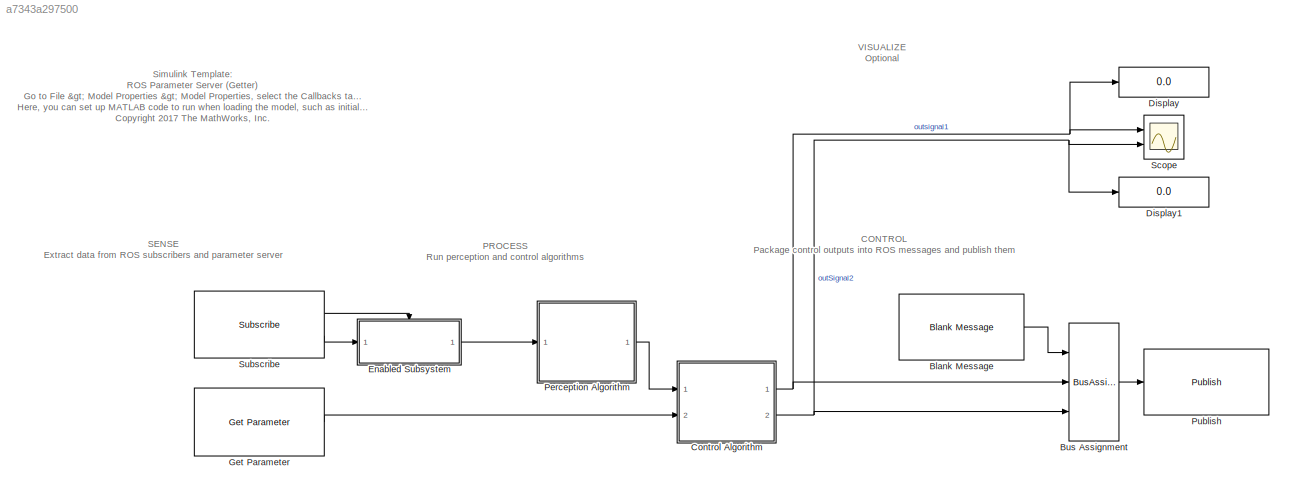
MODEL slx_a7343a297500
KIND model
CONFIG AbsTol = auto
CONFIG EnableMultiTasking = off
CONFIG FixedStep = auto
CONFIG MaxStep = auto
CONFIG MinStep = auto
CONFIG PreLoadFcn = % ROS setup\nrosshutdown;\nipAddr = '';\nrosinit(ipAddr)\n\n% Sample times\nsampleTime = 0.2;\n\n% Control parameters\nctrlParam = 2;\nrosparam('set','/my_param',3.5);
CONFIG RelTol = 1e-3
CONFIG SampleTimeConstraint = Unconstrained
CONFIG Solver = VariableStepAuto
CONFIG SolverName = VariableStepAuto
CONFIG StartTime = 0.0
CONFIG StopTime = inf
BLOCK [Reference] Blank Message  REF=robotlib/Blank Message
  Ports = [0, 1]
  SourceBlock = robotlib/Blank Message
  SourceLibraryInfo = This block requires Robotics System Toolbox
  SourceProductBaseCode = RO
  SourceProductName = Robotics System Toolbox
  SourceType = ROS Blank Message
BLOCK [BusAssignment] Bus Assignment
  AssignedSignals = X,Y
  Ports = [3, 1]
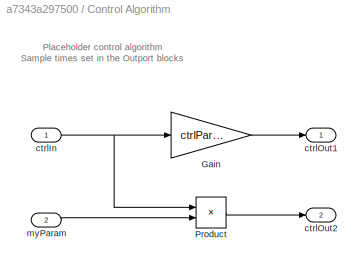
BLOCK [SubSystem] Control Algorithm
  Ports = [2, 2]
  RequestExecContextInheritance = off
  Variant = off
BLOCK [Gain] Control Algorithm/Gain
  Gain = ctrlParam
  OutDataTypeStr = Inherit: Inherit via internal rule
  ParamDataTypeStr = Inherit: Inherit via internal rule
  SaturateOnIntegerOverflow = off
BLOCK [Product] Control Algorithm/Product
  InputSameDT = off
  OutDataTypeStr = Inherit: Inherit via internal rule
  Ports = [2, 1]
  RndMeth = Floor
  SaturateOnIntegerOverflow = off
BLOCK [Inport] Control Algorithm/ctrlIn
  IconDisplay = Port number
BLOCK [Outport] Control Algorithm/ctrlOut1
  AttributesFormatString = Sample time: %<SampleTime>
  IconDisplay = Port number
  SampleTime = sampleTime
  SignalType = real
BLOCK [Outport] Control Algorithm/ctrlOut2
  AttributesFormatString = Sample time: %<SampleTime>
  IconDisplay = Port number
  Port = 2
  SampleTime = sampleTime
BLOCK [Inport] Control Algorithm/myParam
  IconDisplay = Port number
  Port = 2
BLOCK [Display] Display
  Decimation = 1
  Ports = [1]
BLOCK [Display] Display1
  Decimation = 1
  Ports = [1]
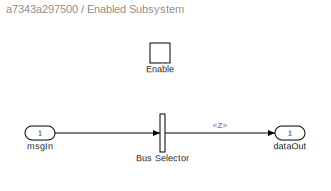
BLOCK [SubSystem] Enabled Subsystem
  Ports = [1, 1, 1]
  RequestExecContextInheritance = off
  TreatAsAtomicUnit = on
  Variant = off
BLOCK [BusSelector] Enabled Subsystem/Bus Selector
  OutputAsBus = off
  OutputSignals = Z
  Ports = [1, 1]
BLOCK [EnablePort] Enabled Subsystem/Enable
  Ports = []
BLOCK [Outport] Enabled Subsystem/dataOut
  IconDisplay = Port number
BLOCK [Inport] Enabled Subsystem/msgIn
  IconDisplay = Port number
BLOCK [Reference] Get Parameter  REF=robotlib/Get Parameter
  Ports = [0, 1]
  SourceBlock = robotlib/Get Parameter
  SourceLibraryInfo = This block requires Robotics System Toolbox
  SourceProductBaseCode = RO
  SourceProductName = Robotics System Toolbox
  SourceType = ROS Get Parameter
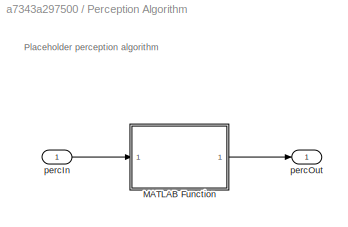
BLOCK [SubSystem] Perception Algorithm
  Ports = [1, 1]
  RequestExecContextInheritance = off
  Variant = off
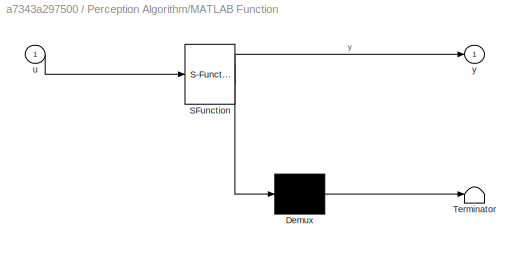
BLOCK [SubSystem] Perception Algorithm/MATLAB Function
  ErrorFcn = Stateflow.Translate.translate
  PermitHierarchicalResolution = ExplicitOnly
  Ports = [1, 1]
  RequestExecContextInheritance = off
  SFBlockType = MATLAB Function
  TreatAsAtomicUnit = on
  Variant = off
BLOCK [Demux] Perception Algorithm/MATLAB Function/ Demux 
  Outputs = 1
  Ports = [1, 1]
BLOCK [S-Function] Perception Algorithm/MATLAB Function/ SFunction 
  EnableBusSupport = on
  FunctionName = sf_sfun
  PortCounts = [1 2]
  Ports = [1, 2]
  SFcnIsStateOwnerBlock = off
  SFunctionDeploymentMode = off
  Tag = Stateflow S-Function paramServerGetterTemplate 2
BLOCK [Terminator] Perception Algorithm/MATLAB Function/ Terminator 
BLOCK [Inport] Perception Algorithm/MATLAB Function/u
  IconDisplay = Port number
BLOCK [Outport] Perception Algorithm/MATLAB Function/y
  IconDisplay = Port number
BLOCK [Inport] Perception Algorithm/percIn
  IconDisplay = Port number
BLOCK [Outport] Perception Algorithm/percOut
  IconDisplay = Port number
BLOCK [Reference] Publish  REF=robotlib/Publish
  Ports = [1]
  SourceBlock = robotlib/Publish
  SourceLibraryInfo = This block requires Robotics System Toolbox
  SourceProductBaseCode = RO
  SourceProductName = Robotics System Toolbox
  SourceType = ROS Publish
BLOCK [Scope] Scope
  NumInputPorts = 2
  Ports = [2]
  ScopeSpecificationString = Simulink.scopes.TimeScopeBlockCfg('CurrentConfiguration', extmgr.ConfigurationSet(extmgr.Configuration('Core','General UI',true),extmgr.Configuration('Core','Source UI',true),extmgr.Configuration('Sources','WiredSimulink',true),extmgr.Configuration('Visuals','Time Domain',true,'SerializedDisplays',{struct('MinYLimReal','-1.00000','MaxYLimReal','1.00000','YLabelReal','','MinYLimMag','0.00000','MaxY...<+1320ch>
BLOCK [Reference] Subscribe  REF=robotlib/Subscribe
  Ports = [0, 2]
  SourceBlock = robotlib/Subscribe
  SourceLibraryInfo = This block requires Robotics System Toolbox
  SourceProductBaseCode = RO
  SourceProductName = Robotics System Toolbox
  SourceType = ROS Subscribe
ANNOTATION (root): Simulink Template: ROS Parameter Server (Getter) Go to File > Model Properties > Model Properties , select the Callbacks tab, and go to PreLoadFcn . Here, you can set up MATLAB code to run when loading the model, such as initializing ROS and loading parameters. <copyright redacted>
ANNOTATION (root): CONTROL Package control outputs into ROS messages and publish them
ANNOTATION (root): PROCESS Run perception and control algorithms
ANNOTATION (root): SENSE Extract data from ROS subscribers and parameter server
ANNOTATION (root): VISUALIZE Optional
ANNOTATION Control Algorithm: Placeholder control algorithm Sample times set in the Outport blocks
ANNOTATION Perception Algorithm: Placeholder perception algorithm
LINE Blank Message:1 -> Bus Assignment:1
LINE Bus Assignment:1 -> Publish:1
LINE Control Algorithm/Gain:1 -> Control Algorithm/ctrlOut1:1
LINE Control Algorithm/Product:1 -> Control Algorithm/ctrlOut2:1
NET Control Algorithm/ctrlIn:1 -> Control Algorithm/Gain:1, Control Algorithm/Product:1
LINE Control Algorithm/myParam:1 -> Control Algorithm/Product:2
NET Control Algorithm:1 -> Bus Assignment:2, Display:1, Scope:1
NET Control Algorithm:2 -> Bus Assignment:3, Display1:1, Scope:2
LINE Enabled Subsystem/Bus Selector:1 -> Enabled Subsystem/dataOut:1
LINE Enabled Subsystem/msgIn:1 -> Enabled Subsystem/Bus Selector:1
LINE Enabled Subsystem:1 -> Perception Algorithm:1
LINE Get Parameter:1 -> Control Algorithm:2
LINE Perception Algorithm/MATLAB Function:1 -> Perception Algorithm/percOut:1
LINE Perception Algorithm/percIn:1 -> Perception Algorithm/MATLAB Function:1
LINE Perception Algorithm:1 -> Control Algorithm:1
LINE Subscribe:1 -> Enabled Subsystem:enable
LINE Subscribe:2 -> Enabled Subsystem:1
note: NET lines group one-source signal fan-out (src -> all destinations, sorted); 1:1 wires keep LINE
CHART Perception Algorithm/MATLAB Function states=1 transitions=1
  STATE_LABEL 'eML_blk_kernel()'
  STATE_LABEL 'SCRIPT:\nfunction y = myPerceptionFcn(u)\n\ny = 2*u;\n'
